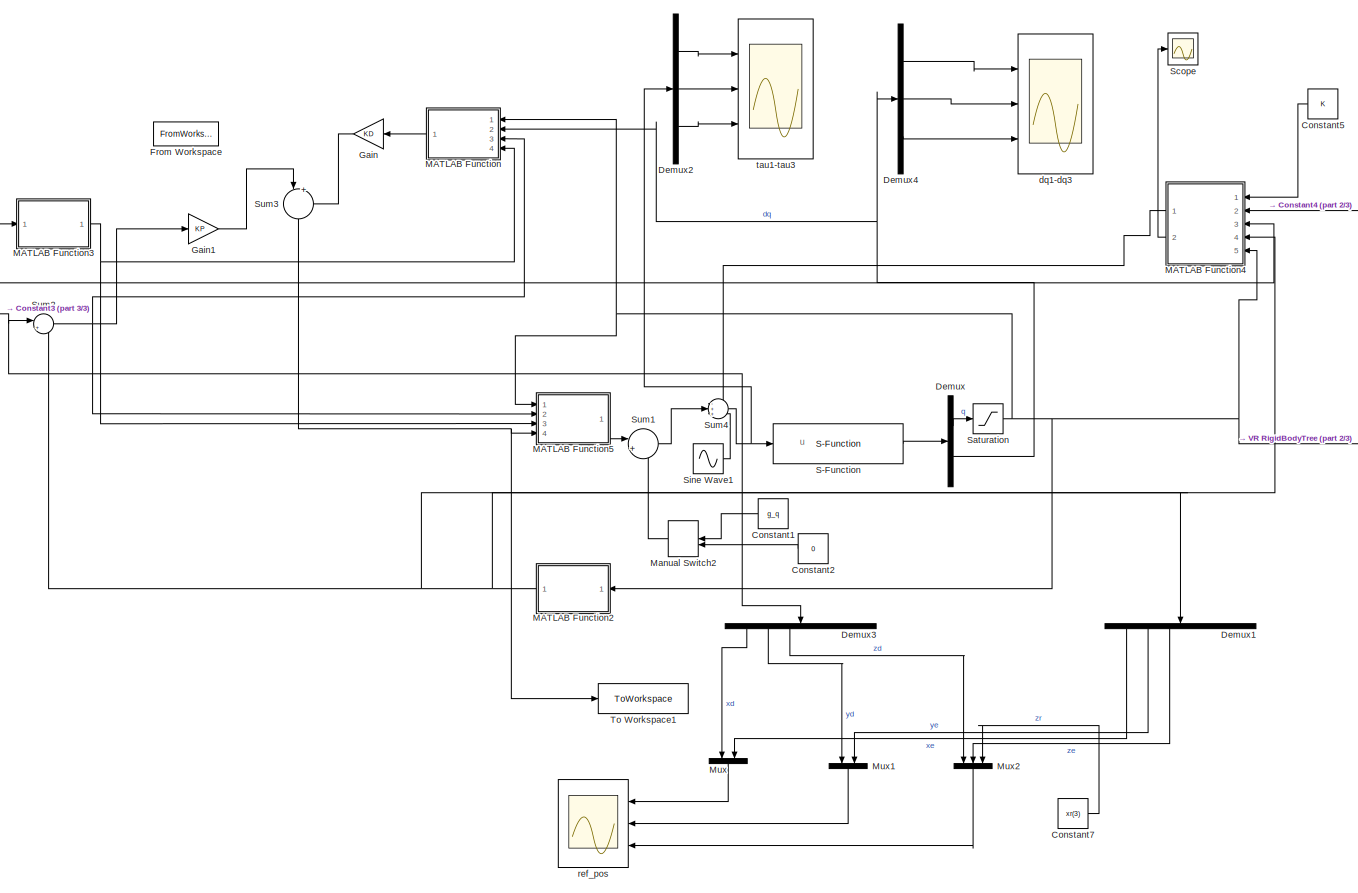
[diagram: root canvas - part 1/3, center side, full height]
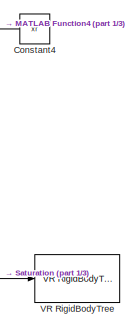
[diagram: root canvas - part 2/3, middle right region]
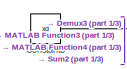
[diagram: root canvas - part 3/3, middle left region]
MODEL slx_05c7365ffb6e
KIND model
CONFIG AbsTol = auto
CONFIG EnableMultiTasking = off
CONFIG FixedStep = auto
CONFIG MaxStep = auto
CONFIG MinStep = auto
CONFIG RelTol = 1e-3
CONFIG SampleTimeConstraint = Unconstrained
CONFIG SolverName = VariableStepAuto
CONFIG StartTime = 0.0
CONFIG StopTime = 10
BLOCK [Constant] Constant1
  Value = g_q
BLOCK [Constant] Constant2
  Value = 0
BLOCK [Constant] Constant3
  Value = xd
BLOCK [Constant] Constant4
  Value = xr
BLOCK [Constant] Constant5
  Value = K
BLOCK [Constant] Constant7
  Value = xr(3)
BLOCK [Demux] Demux
  Outputs = 2
  Ports = [1, 2]
BLOCK [Demux] Demux1
  NameLocation = left
  Outputs = 6
  Ports = [1, 6]
BLOCK [Demux] Demux2
  Outputs = myRobot.N
  Ports = [1, 3]
BLOCK [Demux] Demux3
  NameLocation = left
  Outputs = 6
  Ports = [1, 6]
BLOCK [Demux] Demux4
  Outputs = myRobot.N
  Ports = [1, 3]
BLOCK [FromWorkspace] From Workspace
  Commented = on
  SampleTime = Ts
  VariableName = dotqd
BLOCK [Gain] Gain
  Gain = KD
BLOCK [Gain] Gain1
  Gain = KP
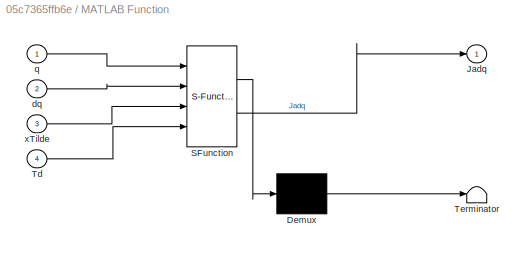
BLOCK [SubSystem] MATLAB Function
  ErrorFcn = Stateflow.Translate.translate
  PermitHierarchicalResolution = ExplicitOnly
  Ports = [4, 1]
  RequestExecContextInheritance = off
  SFBlockType = MATLAB Function
  TreatAsAtomicUnit = on
BLOCK [Demux] MATLAB Function/ Demux 
  Outputs = 1
  Ports = [1, 1]
BLOCK [S-Function] MATLAB Function/ SFunction 
  EnableBusSupport = on
  FunctionName = sf_sfun
  PortCounts = [4 2]
  Ports = [4, 2]
  SFcnIsStateOwnerBlock = off
  SFunctionDeploymentMode = off
  Tag = Stateflow S-Function 2
BLOCK [Terminator] MATLAB Function/ Terminator 
BLOCK [Outport] MATLAB Function/Jadq
BLOCK [Inport] MATLAB Function/Td
  Port = 4
BLOCK [Inport] MATLAB Function/dq
  Port = 2
BLOCK [Inport] MATLAB Function/q
BLOCK [Inport] MATLAB Function/xTilde
  Port = 3
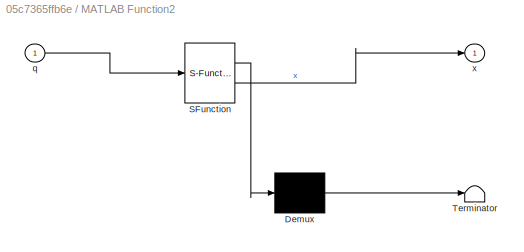
BLOCK [SubSystem] MATLAB Function2
  ErrorFcn = Stateflow.Translate.translate
  PermitHierarchicalResolution = ExplicitOnly
  Ports = [1, 1]
  RequestExecContextInheritance = off
  SFBlockType = MATLAB Function
  TreatAsAtomicUnit = on
BLOCK [Demux] MATLAB Function2/ Demux 
  Outputs = 1
  Ports = [1, 1]
BLOCK [S-Function] MATLAB Function2/ SFunction 
  EnableBusSupport = on
  FunctionName = sf_sfun
  PortCounts = [1 2]
  Ports = [1, 2]
  SFcnIsStateOwnerBlock = off
  SFunctionDeploymentMode = off
  Tag = Stateflow S-Function 3
BLOCK [Terminator] MATLAB Function2/ Terminator 
BLOCK [Inport] MATLAB Function2/q
BLOCK [Outport] MATLAB Function2/x
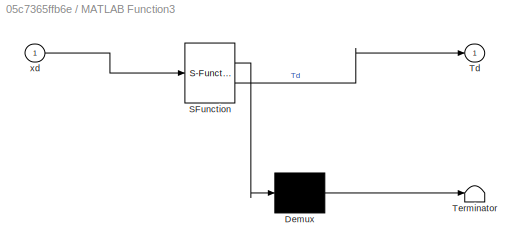
BLOCK [SubSystem] MATLAB Function3
  ErrorFcn = Stateflow.Translate.translate
  PermitHierarchicalResolution = ExplicitOnly
  Ports = [1, 1]
  RequestExecContextInheritance = off
  SFBlockType = MATLAB Function
  TreatAsAtomicUnit = on
BLOCK [Demux] MATLAB Function3/ Demux 
  Outputs = 1
  Ports = [1, 1]
BLOCK [S-Function] MATLAB Function3/ SFunction 
  EnableBusSupport = on
  FunctionName = sf_sfun
  PortCounts = [1 2]
  Ports = [1, 2]
  SFcnIsStateOwnerBlock = off
  SFunctionDeploymentMode = off
  Tag = Stateflow S-Function 4
BLOCK [Terminator] MATLAB Function3/ Terminator 
BLOCK [Outport] MATLAB Function3/Td
BLOCK [Inport] MATLAB Function3/xd
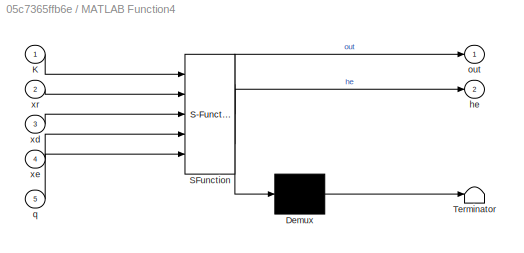
BLOCK [SubSystem] MATLAB Function4
  ErrorFcn = Stateflow.Translate.translate
  PermitHierarchicalResolution = ExplicitOnly
  Ports = [5, 2]
  RequestExecContextInheritance = off
  SFBlockType = MATLAB Function
  TreatAsAtomicUnit = on
BLOCK [Demux] MATLAB Function4/ Demux 
  Outputs = 1
  Ports = [1, 1]
BLOCK [S-Function] MATLAB Function4/ SFunction 
  EnableBusSupport = on
  FunctionName = sf_sfun
  PortCounts = [5 3]
  Ports = [5, 3]
  SFcnIsStateOwnerBlock = off
  SFunctionDeploymentMode = off
  Tag = Stateflow S-Function 5
BLOCK [Terminator] MATLAB Function4/ Terminator 
BLOCK [Inport] MATLAB Function4/K
BLOCK [Outport] MATLAB Function4/he
  Port = 2
BLOCK [Outport] MATLAB Function4/out
BLOCK [Inport] MATLAB Function4/q
  Port = 5
BLOCK [Inport] MATLAB Function4/xd
  Port = 3
BLOCK [Inport] MATLAB Function4/xe
  Port = 4
BLOCK [Inport] MATLAB Function4/xr
  Port = 2
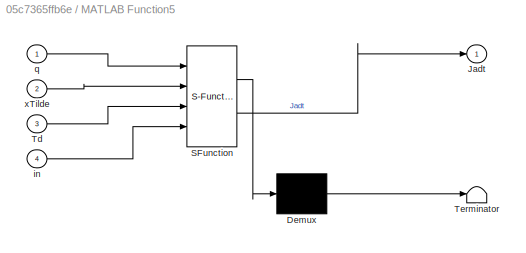
BLOCK [SubSystem] MATLAB Function5
  ErrorFcn = Stateflow.Translate.translate
  PermitHierarchicalResolution = ExplicitOnly
  Ports = [4, 1]
  RequestExecContextInheritance = off
  SFBlockType = MATLAB Function
  TreatAsAtomicUnit = on
BLOCK [Demux] MATLAB Function5/ Demux 
  Outputs = 1
  Ports = [1, 1]
BLOCK [S-Function] MATLAB Function5/ SFunction 
  EnableBusSupport = on
  FunctionName = sf_sfun
  PortCounts = [4 2]
  Ports = [4, 2]
  SFcnIsStateOwnerBlock = off
  SFunctionDeploymentMode = off
  Tag = Stateflow S-Function 6
BLOCK [Terminator] MATLAB Function5/ Terminator 
BLOCK [Outport] MATLAB Function5/Jadt
BLOCK [Inport] MATLAB Function5/Td
  Port = 3
BLOCK [Inport] MATLAB Function5/in
  Port = 4
BLOCK [Inport] MATLAB Function5/q
BLOCK [Inport] MATLAB Function5/xTilde
  Port = 2
BLOCK [ManualSwitch] Manual Switch2
BLOCK [Mux] Mux
  DisplayOption = bar
  Inputs = 2
  NameLocation = left
  Ports = [2, 1]
BLOCK [Mux] Mux1
  DisplayOption = bar
  Inputs = 2
  NameLocation = left
  Ports = [2, 1]
BLOCK [Mux] Mux2
  DisplayOption = bar
  Inputs = 3
  NameLocation = left
  Ports = [3, 1]
BLOCK [S-Function] S-Function
  EnableBusSupport = off
  FunctionName = fwd_dyn_joint_lagrangian
  Parameters = myRobot,qi,dqi
  Ports = [1, 1]
  SFcnIsStateOwnerBlock = off
  SFunctionDeploymentMode = off
BLOCK [Saturate] Saturation
  LowerLimit = [-0.35 -pi/2 -0.2]
  UpperLimit = [0.35 pi/2 0.2]
BLOCK [Scope] Scope
  Floating = off
  NumInputPorts = 1
  Ports = [1]
  ScopeSpecificationString = Simulink.scopes.TimeScopeBlockCfg('CurrentConfiguration', extmgr.ConfigurationSet(extmgr.Configuration('Core','General UI',true),extmgr.Configuration('Core','Source UI',true),extmgr.Configuration('Sources','WiredSimulink',true,'DataLoggingVariableName','ScopeData1'),extmgr.Configuration('Visuals','Time Domain',true,'SerializedDisplays',{struct('MinYLimReal','-1.00000','MaxYLimReal','1.00000','YLab...<+1527ch>
BLOCK [Sin] Sine Wave1
  Amplitude = 0.1
  Commented = on
  Frequency = 5
  Ports = [0, 1]
  SampleTime = 0
BLOCK [Sum] Sum1
  Inputs = |++
  Ports = [2, 1]
BLOCK [Sum] Sum2
  Inputs = |+-
  Ports = [2, 1]
BLOCK [Sum] Sum3
  Inputs = |+-
  NameLocation = right
  Ports = [2, 1]
BLOCK [Sum] Sum4
  Inputs = -++
  Ports = [3, 1]
BLOCK [ToWorkspace] To Workspace1
  FixptAsFi = on
  MaxDataPoints = inf
  Ports = [1]
  SampleTime = -1
  SaveFormat = Timeseries
  VariableName = tau_noG
BLOCK [Reference] VR RigidBodyTree  REF=vrlib/VR RigidBodyTree
  Commented = on
  Ports = [1]
  SourceBlock = vrlib/VR RigidBodyTree
  SourceProductBaseCode = SL
  SourceType = VR RigidBodyTree
BLOCK [Scope] dq1-dq3
  Floating = off
  NumInputPorts = 3
  Ports = [3]
  ScopeSpecificationString = Simulink.scopes.TimeScopeBlockCfg('CurrentConfiguration', extmgr.ConfigurationSet(extmgr.Configuration('Core','General UI',true),extmgr.Configuration('Core','Source UI',true),extmgr.Configuration('Sources','WiredSimulink',true,'DataLoggingVariableName','ScopeData2'),extmgr.Configuration('Visuals','Time Domain',true,'SerializedDisplays',{struct('MinYLimReal','-8.57738','MaxYLimReal','4.01244','YLab...<+2729ch>
BLOCK [Scope] ref_pos
  Floating = off
  NameLocation = top
  NumInputPorts = 3
  Ports = [3]
  ScopeSpecificationString = Simulink.scopes.TimeScopeBlockCfg('CurrentConfiguration', extmgr.ConfigurationSet(extmgr.Configuration('Core','General UI',true,'FigureColor',[0 0 0]),extmgr.Configuration('Core','Source UI',true),extmgr.Configuration('Sources','WiredSimulink',true,'DataLoggingVariableName','ScopeData1'),extmgr.Configuration('Visuals','Time Domain',true,'SerializedDisplays',{struct('MinYLimReal','-0.01875','MaxYLi...<+3543ch>
BLOCK [Scope] tau1-tau3
  Floating = off
  NumInputPorts = 3
  Ports = [3]
  ScopeSpecificationString = Simulink.scopes.TimeScopeBlockCfg('CurrentConfiguration', extmgr.ConfigurationSet(extmgr.Configuration('Core','General UI',true),extmgr.Configuration('Core','Source UI',true),extmgr.Configuration('Sources','WiredSimulink',true),extmgr.Configuration('Visuals','Time Domain',true,'SerializedDisplays',{struct('MinYLimReal','-0.0000000000000025','MaxYLimReal','0.0000000000000003','YLabelReal','','MinYL...<+2854ch>
ANNOTATION (root): u
LINE Constant1:1 -> Manual Switch2:1
LINE Constant2:1 -> Manual Switch2:2
NET Constant3:1 -> Demux3:1, MATLAB Function3:1, MATLAB Function4:3, Sum2:1
LINE Constant4:1 -> MATLAB Function4:2
LINE Constant5:1 -> MATLAB Function4:1
LINE Constant7:1 -> Mux2:3
LINE Demux1:1 -> Mux:2
LINE Demux1:2 -> Mux1:2
LINE Demux1:3 -> Mux2:2
LINE Demux2:1 -> tau1-tau3:1
LINE Demux2:2 -> tau1-tau3:2
LINE Demux2:3 -> tau1-tau3:3
LINE Demux3:1 -> Mux:1
LINE Demux3:2 -> Mux1:1
LINE Demux3:3 -> Mux2:1
LINE Demux4:1 -> dq1-dq3:1
LINE Demux4:2 -> dq1-dq3:2
LINE Demux4:3 -> dq1-dq3:3
LINE Demux:1 -> Saturation:1
NET Demux:2 -> Demux4:1, MATLAB Function:2
LINE Gain1:1 -> Sum3:1
LINE Gain:1 -> Sum3:2
NET MATLAB Function2:1 -> Demux1:1, MATLAB Function4:4, Sum2:2
NET MATLAB Function3:1 -> MATLAB Function5:3, MATLAB Function:4
LINE MATLAB Function4:1 -> Sum4:1
LINE MATLAB Function4:2 -> Scope:1
LINE MATLAB Function5:1 -> Sum1:1
LINE MATLAB Function:1 -> Gain:1
LINE Manual Switch2:1 -> Sum1:2
LINE Mux1:1 -> ref_pos:2
LINE Mux2:1 -> ref_pos:3
LINE Mux:1 -> ref_pos:1
LINE S-Function:1 -> Demux:1
NET Saturation:1 -> MATLAB Function2:1, MATLAB Function4:5, MATLAB Function5:1, MATLAB Function:1, VR RigidBodyTree:1
LINE Sine Wave1:1 -> Sum4:3
LINE Sum1:1 -> Sum4:2
NET Sum2:1 -> Gain1:1, MATLAB Function5:2, MATLAB Function:3
NET Sum3:1 -> MATLAB Function5:4, To Workspace1:1
NET Sum4:1 -> Demux2:1, S-Function:1
note: NET lines group one-source signal fan-out (src -> all destinations, sorted); 1:1 wires keep LINE
CHART MATLAB Function states=1 transitions=1
  STATE_LABEL 'eML_blk_kernel()'
  STATE_LABEL 'SCRIPT:\nfunction Jadq = fcn(q, dq,xTilde, Td)\n\nJadq =getJad(q,xTilde,Td)*dq;\n'
CHART MATLAB Function2 states=1 transitions=1
  STATE_LABEL 'eML_blk_kernel()'
  STATE_LABEL 'SCRIPT:\nfunction x = fcn(q)\nx = getK(q);'
CHART MATLAB Function3 states=1 transitions=1
  STATE_LABEL 'eML_blk_kernel()'
  STATE_LABEL "SCRIPT:\nfunction Td = getTd(xd)\nRd = eul2rotm(xd(4:6)','ZYZ');\nt = xd(1:3);\nTd = [Rd t\n    zeros(1,3) 1];"
CHART MATLAB Function4 states=1 transitions=1
  STATE_LABEL 'eML_blk_kernel()'
  STATE_LABEL 'SCRIPT:\nfunction [out, he]= he(K, xr, xd, xe, q)\n%consider the interaction only in z direction\nif xe(3) < xr(3)\n    dxrd = xd-xr;\n    dxed = xd-xe;\n    dxre = dxrd-dxed;\n    he = K*dxre;\nelse\n    he = zeros(6,1);\nend\nq2 = q(2);\nJtransp = [\n[           0,         1.0,   0, 0, 0,   0]\n[-0.3*sin(q2), 0.3*cos(q2),   0, 0, 0, 1.0]\n[           0,           0, 1.0, 0, 0,   0]    \n];\nout = Jtransp*he;'
CHART MATLAB Function5 states=1 transitions=1
  STATE_LABEL 'eML_blk_kernel()'
  STATE_LABEL "SCRIPT:\nfunction Jadt = fcn(q, xTilde, Td, in)\n\nJadt =getJad(q,xTilde,Td)'*in;\n\n"
CHART  states=0 transitions=0
CHART  states=0 transitions=0
CHART  states=0 transitions=0
CHART  states=0 transitions=0
CHART  states=0 transitions=0
